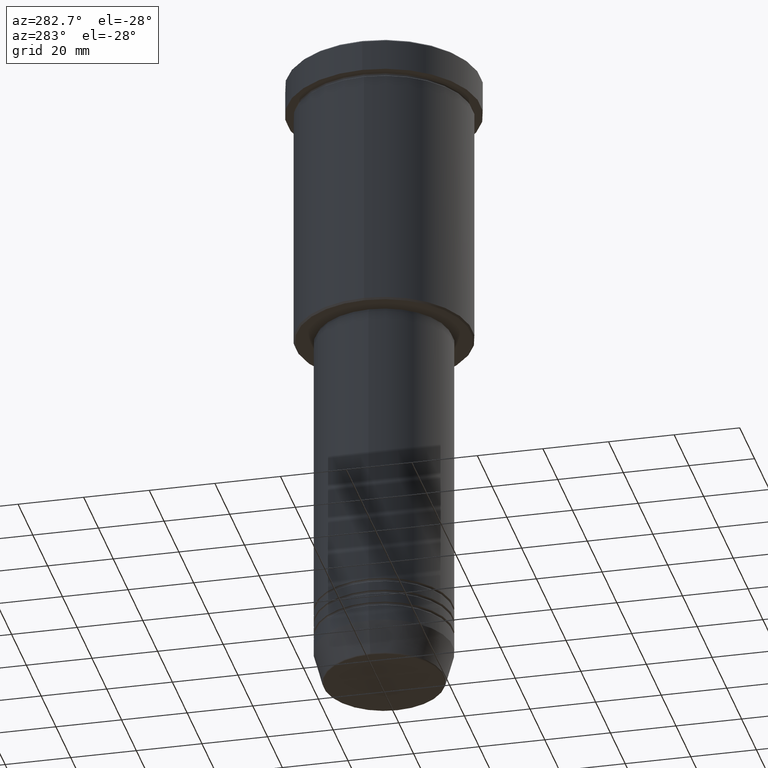
[diagram: clean part render]
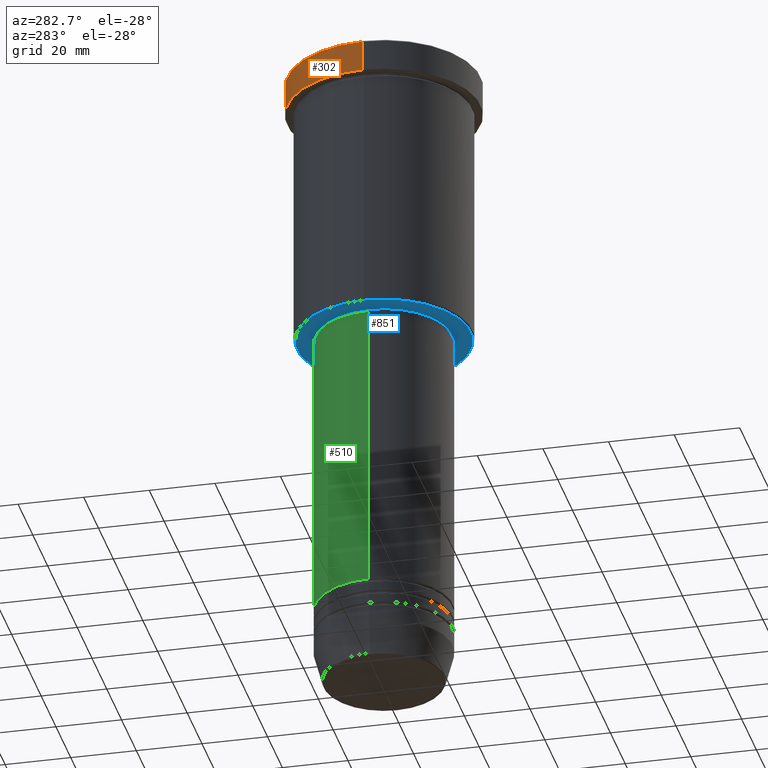
[diagram: same view with three faces highlighted in distinct colors, each labeled with its STEP entity id]
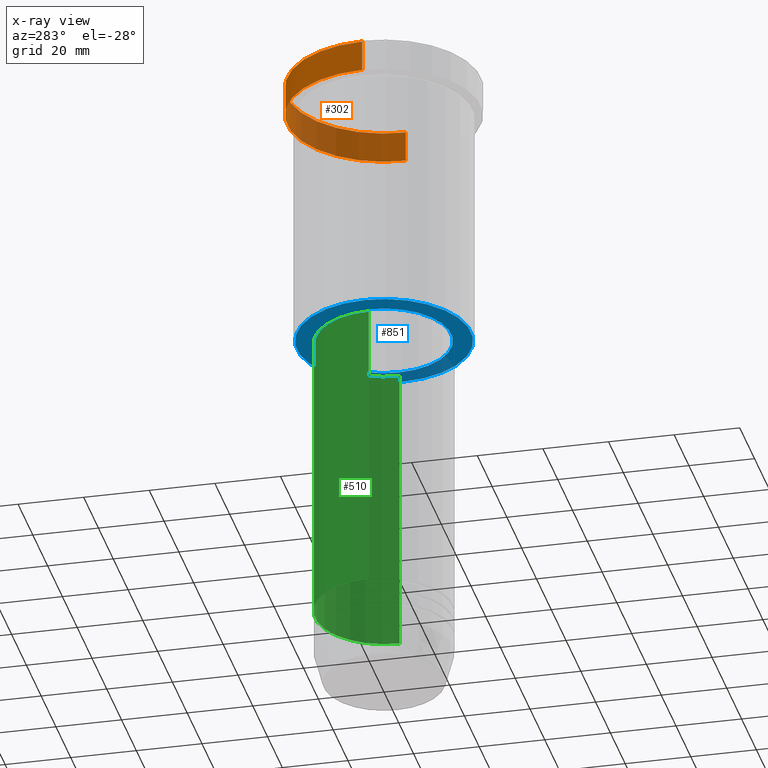
[diagram: x-ray of the same camera — body ghosted, the three highlighted faces saturated]
A machine part, auxiliary view with three faces highlighted in distinct colors.
The next image is the same camera in x-ray (body ghosted, the three faces saturated) — at least one of them is partly hidden behind the body in this view.
Their STEP definitions:

[orange] entity #302 — the highlighted cylindrical surface (partial cylindrical patch) has radius 29.5 mm, axis along (-0, -0, 1).
#12 = VECTOR ( 'NONE', #137, 1000.000000000000000 ) ;
#35 = DIRECTION ( 'NONE',  ( 1.000000000000000000, 0.000000000000000000, 0.000000000000000000 ) ) ;
#129 = AXIS2_PLACEMENT_3D ( 'NONE', #871, #414, #35 ) ;
#137 = DIRECTION ( 'NONE',  ( -0.000000000000000000, -0.000000000000000000, 1.000000000000000000 ) ) ;
#152 = DIRECTION ( 'NONE',  ( -0.000000000000000000, -0.000000000000000000, 1.000000000000000000 ) ) ;
#212 = ORIENTED_EDGE ( 'NONE', *, *, #690, .T. ) ;
#225 = DIRECTION ( 'NONE',  ( 1.000000000000000000, 0.000000000000000000, 0.000000000000000000 ) ) ;
#247 = DIRECTION ( 'NONE',  ( 1.000000000000000000, 0.000000000000000000, 0.000000000000000000 ) ) ;
#302 = ADVANCED_FACE ( 'NONE', ( #330 ), #1137, .T. ) ;
#313 = DIRECTION ( 'NONE',  ( 0.000000000000000000, 0.000000000000000000, -1.000000000000000000 ) ) ;
#330 = FACE_OUTER_BOUND ( 'NONE', #487, .T. ) ;
#349 = CARTESIAN_POINT ( 'NONE',  ( -29.50000000000000000, 3.612708057484691604E-15, -9.999999999999992895 ) ) ;
#358 = VERTEX_POINT ( 'NONE', #788 ) ;
#374 = AXIS2_PLACEMENT_3D ( 'NONE', #1165, #152, #247 ) ;
#414 = DIRECTION ( 'NONE',  ( -0.000000000000000000, -0.000000000000000000, 1.000000000000000000 ) ) ;
#487 = EDGE_LOOP ( 'NONE', ( #810, #212, #619, #565 ) ) ;
#502 = VECTOR ( 'NONE', #566, 1000.000000000000000 ) ;
#565 = ORIENTED_EDGE ( 'NONE', *, *, #1074, .F. ) ;
#566 = DIRECTION ( 'NONE',  ( -0.000000000000000000, -0.000000000000000000, 1.000000000000000000 ) ) ;
#584 = AXIS2_PLACEMENT_3D ( 'NONE', #864, #313, #225 ) ;
#619 = ORIENTED_EDGE ( 'NONE', *, *, #680, .T. ) ;
#636 = CARTESIAN_POINT ( 'NONE',  ( 29.50000000000000000, 0.000000000000000000, -9.999999999999992895 ) ) ;
#644 = CIRCLE ( 'NONE', #129, 29.50000000000000000 ) ;
#673 = EDGE_CURVE ( 'NONE', #737, #926, #644, .T. ) ;
#680 = EDGE_CURVE ( 'NONE', #1086, #358, #1101, .T. ) ;
#690 = EDGE_CURVE ( 'NONE', #926, #1086, #691, .T. ) ;
#691 = LINE ( 'NONE', #1038, #12 ) ;
#729 = CARTESIAN_POINT ( 'NONE',  ( 29.50000000000000000, 0.000000000000000000, 0.000000000000000000 ) ) ;
#737 = VERTEX_POINT ( 'NONE', #636 ) ;
#746 = LINE ( 'NONE', #729, #502 ) ;
#788 = CARTESIAN_POINT ( 'NONE',  ( 29.50000000000000000, 0.000000000000000000, -0.4999999999999726885 ) ) ;
#810 = ORIENTED_EDGE ( 'NONE', *, *, #673, .T. ) ;
#864 = CARTESIAN_POINT ( 'NONE',  ( 0.000000000000000000, 0.000000000000000000, -0.4999999999999726885 ) ) ;
#871 = CARTESIAN_POINT ( 'NONE',  ( 0.000000000000000000, 0.000000000000000000, -9.999999999999992895 ) ) ;
#926 = VERTEX_POINT ( 'NONE', #349 ) ;
#1038 = CARTESIAN_POINT ( 'NONE',  ( -29.50000000000000000, 3.612708057484691604E-15, 0.000000000000000000 ) ) ;
#1074 = EDGE_CURVE ( 'NONE', #737, #358, #746, .T. ) ;
#1086 = VERTEX_POINT ( 'NONE', #1115 ) ;
#1101 = CIRCLE ( 'NONE', #584, 29.50000000000000000 ) ;
#1115 = CARTESIAN_POINT ( 'NONE',  ( -29.50000000000000000, 3.612708057484691604E-15, -0.4999999999999726885 ) ) ;
#1137 = CYLINDRICAL_SURFACE ( 'NONE', #374, 29.50000000000000000 ) ;
#1165 = CARTESIAN_POINT ( 'NONE',  ( 0.000000000000000000, 0.000000000000000000, 0.000000000000000000 ) ) ;

[blue] entity #851 — the highlighted planar face has unit normal (0, 0, -1).
#48 = CIRCLE ( 'NONE', #222, 26.49999999999999645 ) ;
#77 = VERTEX_POINT ( 'NONE', #1077 ) ;
#101 = CARTESIAN_POINT ( 'NONE',  ( -20.50000000000000000, 2.510525938252074481E-15, -86.00000000000001421 ) ) ;
#108 = CARTESIAN_POINT ( 'NONE',  ( -26.49999999999999645, 3.275930187719169552E-15, -86.00000000000001421 ) ) ;
#153 = CARTESIAN_POINT ( 'NONE',  ( 0.000000000000000000, 27.00000000000000355, -86.00000000000001421 ) ) ;
#178 = VERTEX_POINT ( 'NONE', #507 ) ;
#181 = EDGE_LOOP ( 'NONE', ( #913, #293 ) ) ;
#182 = CARTESIAN_POINT ( 'NONE',  ( 0.000000000000000000, 0.000000000000000000, -86.00000000000001421 ) ) ;
#192 = ORIENTED_EDGE ( 'NONE', *, *, #865, .T. ) ;
#222 = AXIS2_PLACEMENT_3D ( 'NONE', #272, #1002, #995 ) ;
#248 = DIRECTION ( 'NONE',  ( 1.000000000000000000, 0.000000000000000000, 0.000000000000000000 ) ) ;
#272 = CARTESIAN_POINT ( 'NONE',  ( 0.000000000000000000, 0.000000000000000000, -86.00000000000001421 ) ) ;
#280 = CIRCLE ( 'NONE', #888, 20.50000000000000000 ) ;
#286 = DIRECTION ( 'NONE',  ( 0.000000000000000000, 0.000000000000000000, -1.000000000000000000 ) ) ;
#293 = ORIENTED_EDGE ( 'NONE', *, *, #516, .T. ) ;
#310 = FACE_BOUND ( 'NONE', #918, .T. ) ;
#424 = CIRCLE ( 'NONE', #1168, 20.50000000000000000 ) ;
#448 = DIRECTION ( 'NONE',  ( 0.000000000000000000, 0.000000000000000000, -1.000000000000000000 ) ) ;
#483 = EDGE_CURVE ( 'NONE', #77, #977, #583, .T. ) ;
#507 = CARTESIAN_POINT ( 'NONE',  ( 20.50000000000000000, 0.000000000000000000, -86.00000000000001421 ) ) ;
#512 = DIRECTION ( 'NONE',  ( 1.000000000000000000, 0.000000000000000000, 0.000000000000000000 ) ) ;
#516 = EDGE_CURVE ( 'NONE', #977, #77, #48, .T. ) ;
#517 = CARTESIAN_POINT ( 'NONE',  ( 0.000000000000000000, 0.000000000000000000, -86.00000000000001421 ) ) ;
#573 = VERTEX_POINT ( 'NONE', #101 ) ;
#583 = CIRCLE ( 'NONE', #1130, 26.49999999999999645 ) ;
#851 = ADVANCED_FACE ( 'NONE', ( #1124, #310 ), #963, .T. ) ;
#865 = EDGE_CURVE ( 'NONE', #573, #178, #280, .T. ) ;
#888 = AXIS2_PLACEMENT_3D ( 'NONE', #1090, #1175, #512 ) ;
#913 = ORIENTED_EDGE ( 'NONE', *, *, #483, .T. ) ;
#918 = EDGE_LOOP ( 'NONE', ( #1111, #192 ) ) ;
#958 = EDGE_CURVE ( 'NONE', #178, #573, #424, .T. ) ;
#963 = PLANE ( 'NONE',  #1143 ) ;
#977 = VERTEX_POINT ( 'NONE', #108 ) ;
#995 = DIRECTION ( 'NONE',  ( -1.000000000000000000, 0.000000000000000000, 0.000000000000000000 ) ) ;
#1002 = DIRECTION ( 'NONE',  ( 0.000000000000000000, 0.000000000000000000, -1.000000000000000000 ) ) ;
#1075 = DIRECTION ( 'NONE',  ( -0.000000000000000000, -0.000000000000000000, 1.000000000000000000 ) ) ;
#1077 = CARTESIAN_POINT ( 'NONE',  ( 26.49999999999999645, 0.000000000000000000, -86.00000000000001421 ) ) ;
#1083 = DIRECTION ( 'NONE',  ( -1.000000000000000000, 0.000000000000000000, -0.000000000000000000 ) ) ;
#1087 = DIRECTION ( 'NONE',  ( -1.000000000000000000, 0.000000000000000000, 0.000000000000000000 ) ) ;
#1090 = CARTESIAN_POINT ( 'NONE',  ( 0.000000000000000000, 0.000000000000000000, -86.00000000000001421 ) ) ;
#1111 = ORIENTED_EDGE ( 'NONE', *, *, #958, .T. ) ;
#1124 = FACE_OUTER_BOUND ( 'NONE', #181, .T. ) ;
#1130 = AXIS2_PLACEMENT_3D ( 'NONE', #182, #286, #1087 ) ;
#1143 = AXIS2_PLACEMENT_3D ( 'NONE', #153, #448, #1083 ) ;
#1168 = AXIS2_PLACEMENT_3D ( 'NONE', #517, #1075, #248 ) ;
#1175 = DIRECTION ( 'NONE',  ( -0.000000000000000000, -0.000000000000000000, 1.000000000000000000 ) ) ;

[green] entity #510 — the highlighted cylindrical surface (partial cylindrical patch) has radius 21 mm, axis along (-0, -0, 1).
#57 = DIRECTION ( 'NONE',  ( -0.000000000000000000, -0.000000000000000000, 1.000000000000000000 ) ) ;
#91 = VECTOR ( 'NONE', #228, 1000.000000000000000 ) ;
#105 = DIRECTION ( 'NONE',  ( -0.000000000000000000, -0.000000000000000000, 1.000000000000000000 ) ) ;
#127 = VECTOR ( 'NONE', #1004, 1000.000000000000000 ) ;
#155 = VERTEX_POINT ( 'NONE', #852 ) ;
#221 = AXIS2_PLACEMENT_3D ( 'NONE', #881, #57, #417 ) ;
#228 = DIRECTION ( 'NONE',  ( -0.000000000000000000, -0.000000000000000000, 1.000000000000000000 ) ) ;
#233 = EDGE_CURVE ( 'NONE', #1080, #155, #1037, .T. ) ;
#261 = CIRCLE ( 'NONE', #643, 20.99999999999999645 ) ;
#357 = EDGE_CURVE ( 'NONE', #662, #1080, #1060, .T. ) ;
#367 = ORIENTED_EDGE ( 'NONE', *, *, #357, .T. ) ;
#368 = FACE_OUTER_BOUND ( 'NONE', #677, .T. ) ;
#400 = DIRECTION ( 'NONE',  ( 1.000000000000000000, 0.000000000000000000, 0.000000000000000000 ) ) ;
#417 = DIRECTION ( 'NONE',  ( 1.000000000000000000, 0.000000000000000000, 0.000000000000000000 ) ) ;
#419 = EDGE_CURVE ( 'NONE', #662, #899, #1106, .T. ) ;
#510 = ADVANCED_FACE ( 'NONE', ( #368 ), #1094, .T. ) ;
#602 = AXIS2_PLACEMENT_3D ( 'NONE', #667, #105, #646 ) ;
#643 = AXIS2_PLACEMENT_3D ( 'NONE', #1046, #684, #400 ) ;
#646 = DIRECTION ( 'NONE',  ( 1.000000000000000000, 0.000000000000000000, 0.000000000000000000 ) ) ;
#654 = EDGE_CURVE ( 'NONE', #899, #155, #261, .T. ) ;
#662 = VERTEX_POINT ( 'NONE', #671 ) ;
#667 = CARTESIAN_POINT ( 'NONE',  ( 0.000000000000000000, 0.000000000000000000, 0.000000000000000000 ) ) ;
#671 = CARTESIAN_POINT ( 'NONE',  ( 21.00000000000000000, 0.000000000000000000, -176.9999999999999147 ) ) ;
#677 = EDGE_LOOP ( 'NONE', ( #367, #940, #993, #1000 ) ) ;
#684 = DIRECTION ( 'NONE',  ( -0.000000000000000000, -0.000000000000000000, 1.000000000000000000 ) ) ;
#789 = CARTESIAN_POINT ( 'NONE',  ( 20.99999999999999645, 0.000000000000000000, -87.00000000000004263 ) ) ;
#840 = CARTESIAN_POINT ( 'NONE',  ( 20.99999999999999645, 0.000000000000000000, 0.000000000000000000 ) ) ;
#852 = CARTESIAN_POINT ( 'NONE',  ( -20.99999999999999645, 2.571758278209441267E-15, -87.00000000000004263 ) ) ;
#857 = CARTESIAN_POINT ( 'NONE',  ( -20.99999999999999645, 2.571758278209441267E-15, 0.000000000000000000 ) ) ;
#881 = CARTESIAN_POINT ( 'NONE',  ( 0.000000000000000000, 0.000000000000000000, -176.9999999999999147 ) ) ;
#899 = VERTEX_POINT ( 'NONE', #789 ) ;
#940 = ORIENTED_EDGE ( 'NONE', *, *, #233, .T. ) ;
#993 = ORIENTED_EDGE ( 'NONE', *, *, #654, .F. ) ;
#1000 = ORIENTED_EDGE ( 'NONE', *, *, #419, .F. ) ;
#1004 = DIRECTION ( 'NONE',  ( -0.000000000000000000, -0.000000000000000000, 1.000000000000000000 ) ) ;
#1037 = LINE ( 'NONE', #857, #91 ) ;
#1046 = CARTESIAN_POINT ( 'NONE',  ( 0.000000000000000000, 0.000000000000000000, -87.00000000000004263 ) ) ;
#1060 = CIRCLE ( 'NONE', #221, 21.00000000000000000 ) ;
#1080 = VERTEX_POINT ( 'NONE', #1109 ) ;
#1094 = CYLINDRICAL_SURFACE ( 'NONE', #602, 20.99999999999999645 ) ;
#1106 = LINE ( 'NONE', #840, #127 ) ;
#1109 = CARTESIAN_POINT ( 'NONE',  ( -21.00000000000000000, 2.571758278209441661E-15, -176.9999999999999147 ) ) ;